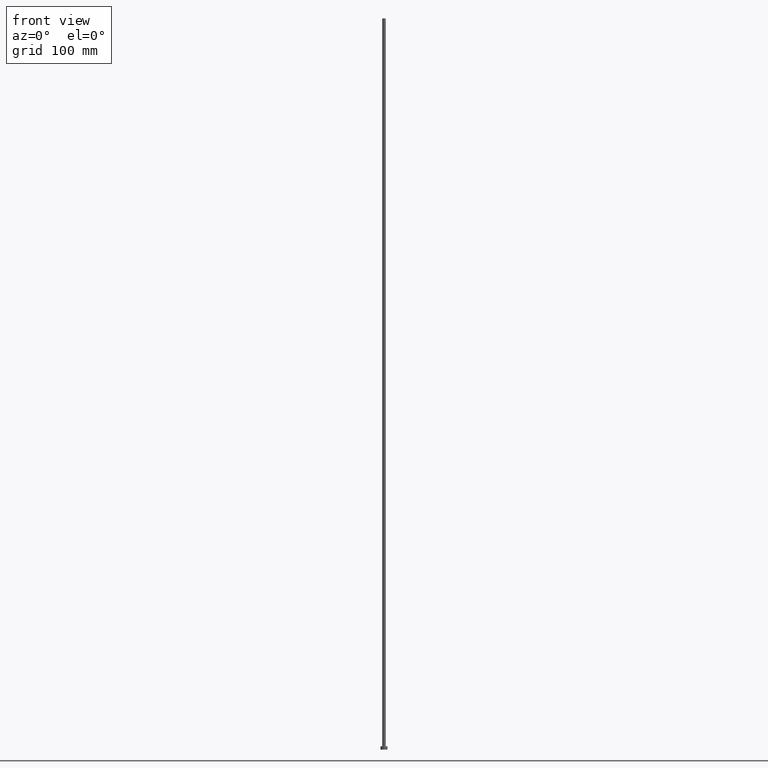
[diagram: clean part render]
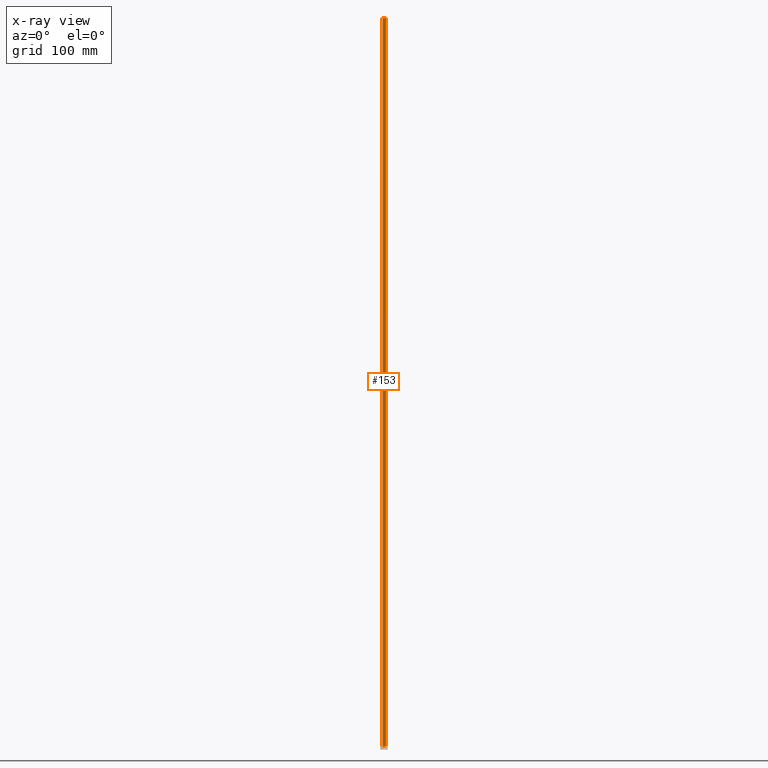
[diagram: x-ray — body ghosted, one internal face saturated and labeled with its STEP entity id]
A machine part, front view, then the same camera in x-ray: the body is ghosted and one INTERNAL B-rep face — a face not visible from any outside direction — is saturated and labeled: STEP entity #153.
In plain terms, the highlighted cylindrical surface (edge-blend (fillet) strip) has radius 1.5 mm, axis along (-0, -0, -1).
Its self-contained STEP definition (entity closure, byte-faithful):
#1 = VERTEX_POINT ( 'NONE', #97 ) ;
#7 = DIRECTION ( 'NONE',  ( 1.000000000000000000, 0.000000000000000000, 0.000000000000000000 ) ) ;
#9 = DIRECTION ( 'NONE',  ( 0.000000000000000000, 0.000000000000000000, 1.000000000000000000 ) ) ;
#24 = CIRCLE ( 'NONE', #38, 1.500000000000000222 ) ;
#25 = VERTEX_POINT ( 'NONE', #121 ) ;
#29 = DIRECTION ( 'NONE',  ( -0.000000000000000000, -0.000000000000000000, -1.000000000000000000 ) ) ;
#32 = CARTESIAN_POINT ( 'NONE',  ( 0.000000000000000000, 0.000000000000000000, 630.0000000000000000 ) ) ;
#38 = AXIS2_PLACEMENT_3D ( 'NONE', #106, #201, #7 ) ;
#43 = VECTOR ( 'NONE', #29, 1000.000000000000000 ) ;
#45 = FACE_OUTER_BOUND ( 'NONE', #76, .T. ) ;
#47 = DIRECTION ( 'NONE',  ( -0.000000000000000000, -0.000000000000000000, -1.000000000000000000 ) ) ;
#66 = EDGE_CURVE ( 'NONE', #25, #214, #246, .T. ) ;
#73 = ORIENTED_EDGE ( 'NONE', *, *, #81, .T. ) ;
#76 = EDGE_LOOP ( 'NONE', ( #152, #98, #73, #141 ) ) ;
#81 = EDGE_CURVE ( 'NONE', #214, #103, #24, .T. ) ;
#89 = CARTESIAN_POINT ( 'NONE',  ( -1.500000000000000222, 0.000000000000000000, 630.0000000000000000 ) ) ;
#97 = CARTESIAN_POINT ( 'NONE',  ( -1.500000000000000222, 0.000000000000000000, 630.0000000000000000 ) ) ;
#98 = ORIENTED_EDGE ( 'NONE', *, *, #66, .T. ) ;
#103 = VERTEX_POINT ( 'NONE', #147 ) ;
#106 = CARTESIAN_POINT ( 'NONE',  ( 0.000000000000000000, 0.000000000000000000, 3.000000000000000000 ) ) ;
#121 = CARTESIAN_POINT ( 'NONE',  ( 1.500000000000000222, 1.836970198721030181E-16, 630.0000000000000000 ) ) ;
#141 = ORIENTED_EDGE ( 'NONE', *, *, #229, .F. ) ;
#143 = LINE ( 'NONE', #89, #43 ) ;
#147 = CARTESIAN_POINT ( 'NONE',  ( -1.500000000000000222, 0.000000000000000000, 3.000000000000000000 ) ) ;
#148 = CIRCLE ( 'NONE', #233, 1.500000000000000222 ) ;
#152 = ORIENTED_EDGE ( 'NONE', *, *, #198, .F. ) ;
#153 = ADVANCED_FACE ( 'NONE', ( #45 ), #160, .T. ) ;
#160 = CYLINDRICAL_SURFACE ( 'NONE', #226, 1.500000000000000222 ) ;
#182 = CARTESIAN_POINT ( 'NONE',  ( 0.000000000000000000, 0.000000000000000000, 630.0000000000000000 ) ) ;
#184 = CARTESIAN_POINT ( 'NONE',  ( 1.500000000000000222, 1.836970198721030181E-16, 3.000000000000000000 ) ) ;
#195 = DIRECTION ( 'NONE',  ( 1.000000000000000000, 0.000000000000000000, 0.000000000000000000 ) ) ;
#198 = EDGE_CURVE ( 'NONE', #25, #1, #148, .T. ) ;
#199 = CARTESIAN_POINT ( 'NONE',  ( 1.500000000000000222, 1.836970198721030181E-16, 630.0000000000000000 ) ) ;
#201 = DIRECTION ( 'NONE',  ( 0.000000000000000000, 0.000000000000000000, 1.000000000000000000 ) ) ;
#214 = VERTEX_POINT ( 'NONE', #184 ) ;
#217 = DIRECTION ( 'NONE',  ( -0.000000000000000000, -0.000000000000000000, -1.000000000000000000 ) ) ;
#223 = DIRECTION ( 'NONE',  ( -1.000000000000000000, 0.000000000000000000, 0.000000000000000000 ) ) ;
#226 = AXIS2_PLACEMENT_3D ( 'NONE', #32, #47, #223 ) ;
#229 = EDGE_CURVE ( 'NONE', #1, #103, #143, .T. ) ;
#233 = AXIS2_PLACEMENT_3D ( 'NONE', #182, #9, #195 ) ;
#242 = VECTOR ( 'NONE', #217, 1000.000000000000000 ) ;
#246 = LINE ( 'NONE', #199, #242 ) ;